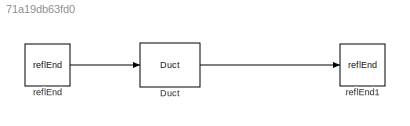
MODEL slx_71a19db63fd0
KIND model
CONFIG AbsTol = auto
CONFIG FixedStep = 1.0
CONFIG MaxStep = auto
CONFIG MinStep = auto
CONFIG RelTol = 1e-3
CONFIG SampleTimeConstraint = Unconstrained
CONFIG Solver = FixedStepDiscrete
CONFIG SolverMode = Auto
CONFIG SolverName = FixedStepDiscrete
CONFIG StartTime = 0.0
CONFIG StopTime = 1.0
BLOCK [Reference] Duct  REF=taXlibrary/Duct
  AttributesFormatString = %<l> m
  Ports = [1, 1]
  SourceBlock = taXlibrary/Duct
BLOCK [Reference] reflEnd  REF=taXlibrary/reflEnd
  AttributesFormatString = %<r>
  Ports = [0, 1]
  SourceBlock = taXlibrary/reflEnd
BLOCK [Reference] reflEnd1  REF=taXlibrary/reflEnd
  AttributesFormatString = %<r>
  Ports = [1]
  SourceBlock = taXlibrary/reflEnd
LINE Duct:1 -> reflEnd1:1
LINE reflEnd:1 -> Duct:1
